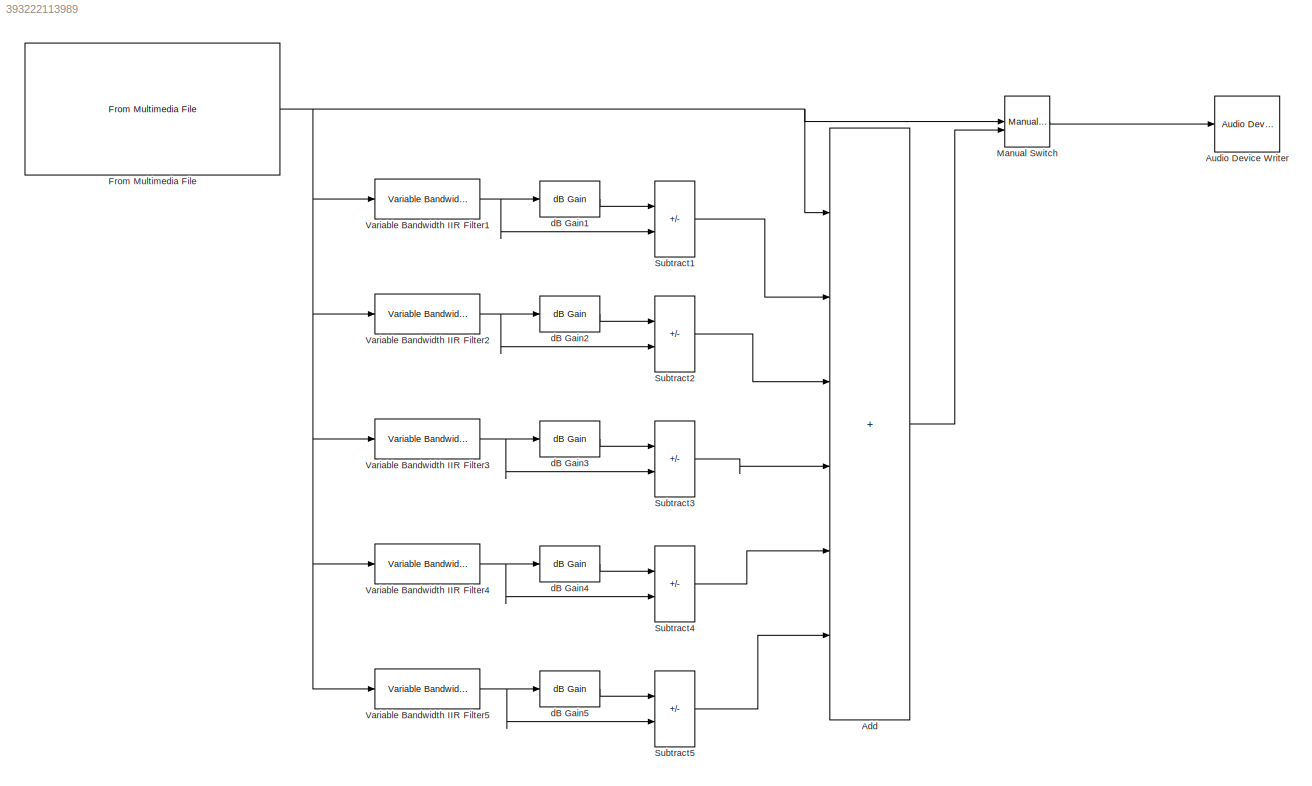
MODEL slx_393222113989
KIND model
CONFIG AbsTol = auto
CONFIG EnableMultiTasking = off
CONFIG FixedStep = auto
CONFIG MaxStep = auto
CONFIG MinStep = auto
CONFIG RelTol = 1e-3
CONFIG SampleTimeConstraint = Unconstrained
CONFIG SolverName = VariableStepAuto
CONFIG StartTime = 0.0
CONFIG StopTime = inf
BLOCK [Sum] Add
  IconShape = rectangular
  Inputs = ++++++
  Ports = [6, 1]
BLOCK [Reference] Audio Device Writer  REF=dspsnks4/Audio Device
Writer
  Ports = [1]
  SourceBlock = dspsnks4/Audio Device\nWriter
  SourceProductBaseCode = DS
  SourceType = Audio Device Writer
BLOCK [Reference] From Multimedia File  REF=dspvision/From Multimedia File
  Ports = [0, 1]
  SourceBlock = dspvision/From Multimedia File
  SourceProductBaseCode = DS,HW,VP
  SourceType = From Multimedia File
BLOCK [ManualSwitch] Manual Switch
  CurrentSetting = 0
BLOCK [Sum] Subtract1
  IconShape = rectangular
  Inputs = +-
  Ports = [2, 1]
BLOCK [Sum] Subtract2
  IconShape = rectangular
  Inputs = +-
  Ports = [2, 1]
BLOCK [Sum] Subtract3
  IconShape = rectangular
  Inputs = +-
  Ports = [2, 1]
BLOCK [Sum] Subtract4
  IconShape = rectangular
  Inputs = +-
  Ports = [2, 1]
BLOCK [Sum] Subtract5
  IconShape = rectangular
  Inputs = +-
  Ports = [2, 1]
BLOCK [Reference] Variable Bandwidth IIR Filter1  REF=dspfdesign/Variable Bandwidth
IIR Filter
  Ports = [1, 1]
  SourceBlock = dspfdesign/Variable Bandwidth\nIIR Filter
  SourceProductBaseCode = DS
  SourceType = dsp.simulink.VariableBandwidthIIRFilter
BLOCK [Reference] Variable Bandwidth IIR Filter2  REF=dspfdesign/Variable Bandwidth
IIR Filter
  Ports = [1, 1]
  SourceBlock = dspfdesign/Variable Bandwidth\nIIR Filter
  SourceProductBaseCode = DS
  SourceType = dsp.simulink.VariableBandwidthIIRFilter
BLOCK [Reference] Variable Bandwidth IIR Filter3  REF=dspfdesign/Variable Bandwidth
IIR Filter
  Ports = [1, 1]
  SourceBlock = dspfdesign/Variable Bandwidth\nIIR Filter
  SourceProductBaseCode = DS
  SourceType = dsp.simulink.VariableBandwidthIIRFilter
BLOCK [Reference] Variable Bandwidth IIR Filter4  REF=dspfdesign/Variable Bandwidth
IIR Filter
  Ports = [1, 1]
  SourceBlock = dspfdesign/Variable Bandwidth\nIIR Filter
  SourceProductBaseCode = DS
  SourceType = dsp.simulink.VariableBandwidthIIRFilter
BLOCK [Reference] Variable Bandwidth IIR Filter5  REF=dspfdesign/Variable Bandwidth
IIR Filter
  Ports = [1, 1]
  SourceBlock = dspfdesign/Variable Bandwidth\nIIR Filter
  SourceProductBaseCode = DS
  SourceType = dsp.simulink.VariableBandwidthIIRFilter
BLOCK [Reference] dB Gain1  REF=dspmathops/dB Gain
  Ports = [1, 1]
  SourceBlock = dspmathops/dB Gain
  SourceProductBaseCode = DS
  SourceType = dB Gain
BLOCK [Reference] dB Gain2  REF=dspmathops/dB Gain
  Ports = [1, 1]
  SourceBlock = dspmathops/dB Gain
  SourceProductBaseCode = DS
  SourceType = dB Gain
BLOCK [Reference] dB Gain3  REF=dspmathops/dB Gain
  Ports = [1, 1]
  SourceBlock = dspmathops/dB Gain
  SourceProductBaseCode = DS
  SourceType = dB Gain
BLOCK [Reference] dB Gain4  REF=dspmathops/dB Gain
  Ports = [1, 1]
  SourceBlock = dspmathops/dB Gain
  SourceProductBaseCode = DS
  SourceType = dB Gain
BLOCK [Reference] dB Gain5  REF=dspmathops/dB Gain
  Ports = [1, 1]
  SourceBlock = dspmathops/dB Gain
  SourceProductBaseCode = DS
  SourceType = dB Gain
LINE Add:1 -> Manual Switch:2
NET From Multimedia File:1 -> Add:1, Manual Switch:1, Variable Bandwidth IIR Filter1:1, Variable Bandwidth IIR Filter2:1, Variable Bandwidth IIR Filter3:1, Variable Bandwidth IIR Filter4:1, Variable Bandwidth IIR Filter5:1
LINE Manual Switch:1 -> Audio Device Writer:1
LINE Subtract1:1 -> Add:2
LINE Subtract2:1 -> Add:3
LINE Subtract3:1 -> Add:4
LINE Subtract4:1 -> Add:5
LINE Subtract5:1 -> Add:6
NET Variable Bandwidth IIR Filter1:1 -> Subtract1:2, dB Gain1:1
NET Variable Bandwidth IIR Filter2:1 -> Subtract2:2, dB Gain2:1
NET Variable Bandwidth IIR Filter3:1 -> Subtract3:2, dB Gain3:1
NET Variable Bandwidth IIR Filter4:1 -> Subtract4:2, dB Gain4:1
NET Variable Bandwidth IIR Filter5:1 -> Subtract5:2, dB Gain5:1
LINE dB Gain1:1 -> Subtract1:1
LINE dB Gain2:1 -> Subtract2:1
LINE dB Gain3:1 -> Subtract3:1
LINE dB Gain4:1 -> Subtract4:1
LINE dB Gain5:1 -> Subtract5:1
note: NET lines group one-source signal fan-out (src -> all destinations, sorted); 1:1 wires keep LINE
